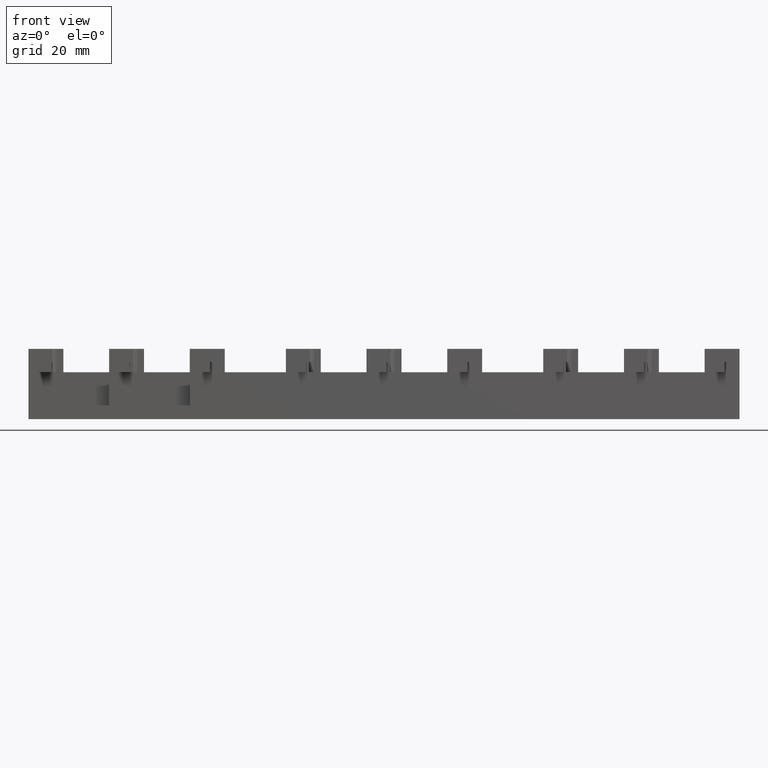
[diagram: clean part render]
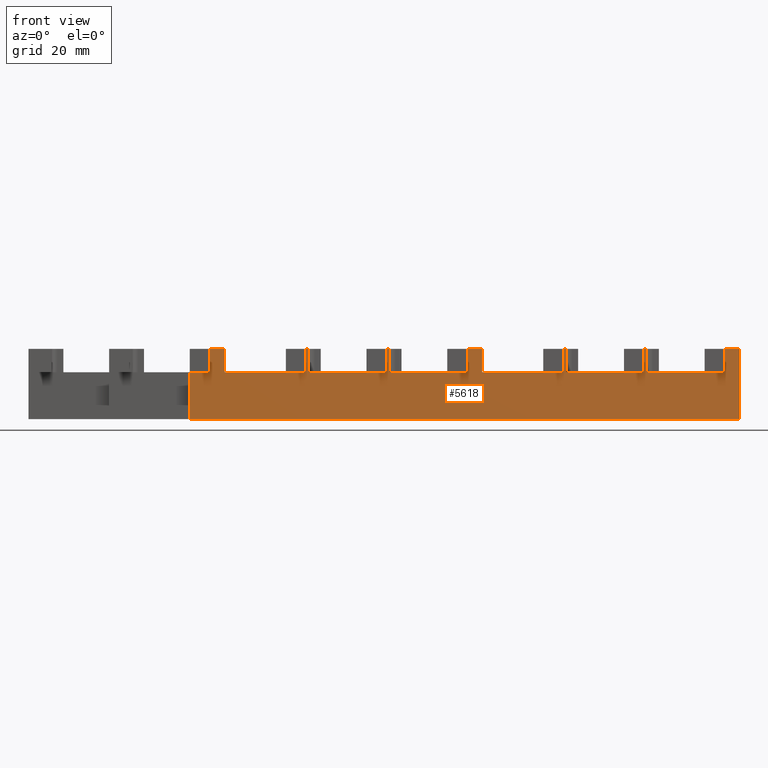
[diagram: same view with one face highlighted and labeled with its STEP entity id]
A machine part, front view. The second image highlights one B-rep face of the part: STEP entity #5618.
In plain terms, the highlighted planar face has unit normal (0, -1, 0).
Its self-contained STEP definition (entity closure, byte-faithful):
#3403=CARTESIAN_POINT('',(104.09999999999991,-7.999999999990921,103.99999999999089));
#3404=VERTEX_POINT('',#3403);
#3444=CARTESIAN_POINT('',(94.000000000000114,-7.999999999990878,103.99999999999103));
#3445=VERTEX_POINT('',#3444);
#3452=CARTESIAN_POINT('',(94.000000000000085,-7.999999999991048,103.99999999999103));
#3453=DIRECTION('',(1.0,0.0,0.0));
#3454=VECTOR('',#3453,10.099999999999795);
#3455=LINE('',#3452,#3454);
#3456=EDGE_CURVE('',#3445,#3404,#3455,.T.);
#3485=CARTESIAN_POINT('',(108.09999999999991,-7.999999999990921,103.99999999999083));
#3486=VERTEX_POINT('',#3485);
#3493=CARTESIAN_POINT('',(118.19999999999982,-7.999999999990735,103.99999999999071));
#3494=VERTEX_POINT('',#3493);
#3495=CARTESIAN_POINT('',(108.09999999999988,-7.999999999990866,103.99999999999085));
#3496=DIRECTION('',(1.0,0.0,0.0));
#3497=VECTOR('',#3496,10.099999999999909);
#3498=LINE('',#3495,#3497);
#3499=EDGE_CURVE('',#3486,#3494,#3498,.T.);
#3523=CARTESIAN_POINT('',(49.000000000000099,-7.999999999991461,103.99999999999162));
#3524=VERTEX_POINT('',#3523);
#3533=CARTESIAN_POINT('',(59.099999999999895,-7.99999999999149,103.9999999999915));
#3534=VERTEX_POINT('',#3533);
#3535=CARTESIAN_POINT('',(49.000000000000085,-7.999999999991626,103.99999999999163));
#3536=DIRECTION('',(1.0,0.0,0.0));
#3537=VECTOR('',#3536,10.099999999999795);
#3538=LINE('',#3535,#3537);
#3539=EDGE_CURVE('',#3524,#3534,#3538,.T.);
#3582=CARTESIAN_POINT('',(63.099999999999895,-7.999999999991504,103.99999999999145));
#3583=VERTEX_POINT('',#3582);
#3590=CARTESIAN_POINT('',(73.199999999999818,-7.999999999991319,103.99999999999132));
#3591=VERTEX_POINT('',#3590);
#3592=CARTESIAN_POINT('',(63.099999999999881,-7.999999999991445,103.99999999999145));
#3593=DIRECTION('',(1.0,0.0,0.0));
#3594=VECTOR('',#3593,10.099999999999909);
#3595=LINE('',#3592,#3594);
#3596=EDGE_CURVE('',#3583,#3591,#3595,.T.);
#3614=CARTESIAN_POINT('',(79.299999999999841,-7.99999999999912,103.99999999999123));
#3615=VERTEX_POINT('',#3614);
#3622=CARTESIAN_POINT('',(90.000000000000057,-7.999999999991091,103.99999999999109));
#3623=VERTEX_POINT('',#3622);
#3624=CARTESIAN_POINT('',(79.299999999999812,-7.999999999991236,103.99999999999123));
#3625=DIRECTION('',(1.0,0.0,0.0));
#3626=VECTOR('',#3625,10.700000000000216);
#3627=LINE('',#3624,#3626);
#3628=EDGE_CURVE('',#3615,#3623,#3627,.T.);
#3703=CARTESIAN_POINT('',(34.299999999999827,-7.999999999999703,103.99999999999181));
#3704=VERTEX_POINT('',#3703);
#3711=CARTESIAN_POINT('',(45.000000000000043,-7.999999999991674,103.99999999999167));
#3712=VERTEX_POINT('',#3711);
#3713=CARTESIAN_POINT('',(34.299999999999784,-7.999999999991815,103.99999999999181));
#3714=DIRECTION('',(1.0,0.0,0.0));
#3715=VECTOR('',#3714,10.700000000000244);
#3716=LINE('',#3713,#3715);
#3717=EDGE_CURVE('',#3704,#3712,#3716,.T.);
#3870=CARTESIAN_POINT('',(124.29999999999976,-7.999999999990651,95.799999999990632));
#3871=VERTEX_POINT('',#3870);
#3878=CARTESIAN_POINT('',(28.199999999999701,-7.999999999991887,95.799999999991897));
#3879=VERTEX_POINT('',#3878);
#3880=CARTESIAN_POINT('',(124.29999999999976,-7.999999999990664,95.799999999990632));
#3881=DIRECTION('',(-1.0,0.0,0.0));
#3882=VECTOR('',#3881,96.100000000000051);
#3883=LINE('',#3880,#3882);
#3884=EDGE_CURVE('',#3871,#3879,#3883,.T.);
#4228=CARTESIAN_POINT('',(34.299999999999883,-7.999999999999703,108.09999999999181));
#4229=VERTEX_POINT('',#4228);
#4236=CARTESIAN_POINT('',(34.299999999999827,-7.999999999999703,103.99999999999181));
#4237=DIRECTION('',(0.0,0.0,1.0));
#4238=VECTOR('',#4237,4.100000000000009);
#4239=LINE('',#4236,#4238);
#4240=EDGE_CURVE('',#3704,#4229,#4239,.T.);
#4252=CARTESIAN_POINT('',(31.699999999999978,-7.999999999999732,108.09999999999185));
#4253=VERTEX_POINT('',#4252);
#4270=CARTESIAN_POINT('',(31.699999999999918,-7.999999999999732,103.99999999999184));
#4271=VERTEX_POINT('',#4270);
#4278=CARTESIAN_POINT('',(31.699999999999918,-7.999999999999732,103.99999999999184));
#4279=DIRECTION('',(0.0,0.0,1.0));
#4280=VECTOR('',#4279,4.100000000000009);
#4281=LINE('',#4278,#4280);
#4282=EDGE_CURVE('',#4271,#4253,#4281,.T.);
#4337=CARTESIAN_POINT('',(28.199999999999807,-7.999999999991887,103.99999999999189));
#4338=VERTEX_POINT('',#4337);
#4339=CARTESIAN_POINT('',(28.199999999999807,-7.999999999991887,103.99999999999191));
#4340=DIRECTION('',(0.0,0.0,-1.0));
#4341=VECTOR('',#4340,8.200000000000003);
#4342=LINE('',#4339,#4341);
#4343=EDGE_CURVE('',#4338,#3879,#4342,.T.);
#4364=CARTESIAN_POINT('',(34.299999999999883,-7.999999999999703,108.09999999999181));
#4365=DIRECTION('',(-1.0,0.0,0.0));
#4366=VECTOR('',#4365,2.599999999999909);
#4367=LINE('',#4364,#4366);
#4368=EDGE_CURVE('',#4229,#4253,#4367,.T.);
#4379=CARTESIAN_POINT('',(28.199999999999811,-7.999999999991886,103.9999999999919));
#4380=DIRECTION('',(1.0,0.0,0.0));
#4381=VECTOR('',#4380,3.500000000000114);
#4382=LINE('',#4379,#4381);
#4383=EDGE_CURVE('',#4338,#4271,#4382,.T.);
#4428=CARTESIAN_POINT('',(63.099999999999959,-7.999999999991504,108.09999999999143));
#4429=VERTEX_POINT('',#4428);
#4436=CARTESIAN_POINT('',(63.099999999999895,-7.999999999991504,103.99999999999145));
#4437=DIRECTION('',(0.0,0.0,1.0));
#4438=VECTOR('',#4437,4.099999999999994);
#4439=LINE('',#4436,#4438);
#4440=EDGE_CURVE('',#3583,#4429,#4439,.T.);
#4452=CARTESIAN_POINT('',(62.600000000000186,-7.999999999991504,108.09999999999144));
#4453=VERTEX_POINT('',#4452);
#4470=CARTESIAN_POINT('',(62.600000000000129,-7.999999999991504,103.99999999999146));
#4471=VERTEX_POINT('',#4470);
#4478=CARTESIAN_POINT('',(62.600000000000129,-7.999999999991504,103.99999999999146));
#4479=DIRECTION('',(0.0,0.0,1.0));
#4480=VECTOR('',#4479,4.099999999999994);
#4481=LINE('',#4478,#4480);
#4482=EDGE_CURVE('',#4471,#4453,#4481,.T.);
#4625=CARTESIAN_POINT('',(63.099999999999959,-7.999999999991498,108.09999999999144));
#4626=DIRECTION('',(-1.0,0.0,0.0));
#4627=VECTOR('',#4626,0.499999999999773);
#4628=LINE('',#4625,#4627);
#4629=EDGE_CURVE('',#4429,#4453,#4628,.T.);
#4640=CARTESIAN_POINT('',(59.099999999999909,-7.9999999999915,103.9999999999915));
#4641=DIRECTION('',(1.0,0.0,0.0));
#4642=VECTOR('',#4641,3.500000000000227);
#4643=LINE('',#4640,#4642);
#4644=EDGE_CURVE('',#3534,#4471,#4643,.T.);
#4657=CARTESIAN_POINT('',(93.500000000000171,-7.999999999991106,108.09999999999104));
#4658=VERTEX_POINT('',#4657);
#4675=CARTESIAN_POINT('',(93.500000000000114,-7.999999999991106,103.99999999999103));
#4676=VERTEX_POINT('',#4675);
#4683=CARTESIAN_POINT('',(93.500000000000114,-7.999999999991106,103.99999999999103));
#4684=DIRECTION('',(0.0,0.0,1.0));
#4685=VECTOR('',#4684,4.099999999999994);
#4686=LINE('',#4683,#4685);
#4687=EDGE_CURVE('',#4676,#4658,#4686,.T.);
#4845=CARTESIAN_POINT('',(94.000000000000185,-7.999999999990878,108.09999999999104));
#4846=VERTEX_POINT('',#4845);
#4853=CARTESIAN_POINT('',(94.000000000000114,-7.999999999990878,103.99999999999103));
#4854=DIRECTION('',(0.0,0.0,1.0));
#4855=VECTOR('',#4854,4.099999999999994);
#4856=LINE('',#4853,#4855);
#4857=EDGE_CURVE('',#3445,#4846,#4856,.T.);
#4869=CARTESIAN_POINT('',(94.000000000000171,-7.999999999990872,108.09999999999104));
#4870=DIRECTION('',(-1.0,-4.671818E-013,0.0));
#4871=VECTOR('',#4870,0.5);
#4872=LINE('',#4869,#4871);
#4873=EDGE_CURVE('',#4846,#4658,#4872,.T.);
#4896=CARTESIAN_POINT('',(90.000000000000071,-7.999999999991102,103.99999999999109));
#4897=DIRECTION('',(1.0,0.0,0.0));
#4898=VECTOR('',#4897,3.500000000000057);
#4899=LINE('',#4896,#4898);
#4900=EDGE_CURVE('',#3623,#4676,#4899,.T.);
#4951=CARTESIAN_POINT('',(124.29999999999991,-7.999999999998538,108.09999999999064));
#4952=VERTEX_POINT('',#4951);
#4959=CARTESIAN_POINT('',(124.29999999999991,-7.999999999990651,108.09999999999064));
#4960=DIRECTION('',(0.0,0.0,-1.0));
#4961=VECTOR('',#4960,12.300000000000011);
#4962=LINE('',#4959,#4961);
#4963=EDGE_CURVE('',#4952,#3871,#4962,.T.);
#4975=CARTESIAN_POINT('',(121.7,-7.999999999998581,108.09999999999066));
#4976=VERTEX_POINT('',#4975);
#4993=CARTESIAN_POINT('',(121.69999999999995,-7.999999999998581,103.99999999999068));
#4994=VERTEX_POINT('',#4993);
#5001=CARTESIAN_POINT('',(121.69999999999995,-7.999999999998581,103.99999999999068));
#5002=DIRECTION('',(0.0,0.0,1.0));
#5003=VECTOR('',#5002,4.100000000000009);
#5004=LINE('',#5001,#5003);
#5005=EDGE_CURVE('',#4994,#4976,#5004,.T.);
#5073=CARTESIAN_POINT('',(124.29999999999991,-7.999999999998538,108.09999999999064));
#5074=DIRECTION('',(-1.0,0.0,0.0));
#5075=VECTOR('',#5074,2.599999999999909);
#5076=LINE('',#5073,#5075);
#5077=EDGE_CURVE('',#4952,#4976,#5076,.T.);
#5088=CARTESIAN_POINT('',(118.19999999999983,-7.999999999990738,103.99999999999071));
#5089=DIRECTION('',(1.0,0.0,0.0));
#5090=VECTOR('',#5089,3.500000000000114);
#5091=LINE('',#5088,#5090);
#5092=EDGE_CURVE('',#3494,#4994,#5091,.T.);
#5137=CARTESIAN_POINT('',(108.09999999999997,-7.999999999990921,108.09999999999084));
#5138=VERTEX_POINT('',#5137);
#5145=CARTESIAN_POINT('',(108.09999999999991,-7.999999999990921,103.99999999999083));
#5146=DIRECTION('',(0.0,0.0,1.0));
#5147=VECTOR('',#5146,4.099999999999994);
#5148=LINE('',#5145,#5147);
#5149=EDGE_CURVE('',#3486,#5138,#5148,.T.);
#5161=CARTESIAN_POINT('',(107.60000000000019,-7.999999999990921,108.09999999999086));
#5162=VERTEX_POINT('',#5161);
#5179=CARTESIAN_POINT('',(107.60000000000014,-7.999999999990921,103.99999999999085));
#5180=VERTEX_POINT('',#5179);
#5187=CARTESIAN_POINT('',(107.60000000000014,-7.999999999990921,103.99999999999085));
#5188=DIRECTION('',(0.0,0.0,1.0));
#5189=VECTOR('',#5188,4.099999999999994);
#5190=LINE('',#5187,#5189);
#5191=EDGE_CURVE('',#5180,#5162,#5190,.T.);
#5337=CARTESIAN_POINT('',(108.09999999999997,-7.999999999990915,108.09999999999086));
#5338=DIRECTION('',(-1.0,0.0,0.0));
#5339=VECTOR('',#5338,0.499999999999773);
#5340=LINE('',#5337,#5339);
#5341=EDGE_CURVE('',#5138,#5162,#5340,.T.);
#5352=CARTESIAN_POINT('',(104.09999999999992,-7.999999999990913,103.99999999999091));
#5353=DIRECTION('',(1.0,0.0,0.0));
#5354=VECTOR('',#5353,3.500000000000227);
#5355=LINE('',#5352,#5354);
#5356=EDGE_CURVE('',#3404,#5180,#5355,.T.);
#5400=CARTESIAN_POINT('',(79.299999999999898,-7.99999999999912,108.09999999999123));
#5401=VERTEX_POINT('',#5400);
#5408=CARTESIAN_POINT('',(79.299999999999841,-7.99999999999912,103.99999999999123));
#5409=DIRECTION('',(0.0,0.0,1.0));
#5410=VECTOR('',#5409,4.100000000000009);
#5411=LINE('',#5408,#5410);
#5412=EDGE_CURVE('',#3615,#5401,#5411,.T.);
#5424=CARTESIAN_POINT('',(76.699999999999989,-7.999999999999149,108.09999999999127));
#5425=VERTEX_POINT('',#5424);
#5442=CARTESIAN_POINT('',(76.699999999999932,-7.999999999999149,103.99999999999126));
#5443=VERTEX_POINT('',#5442);
#5450=CARTESIAN_POINT('',(76.699999999999932,-7.999999999999149,103.99999999999126));
#5451=DIRECTION('',(0.0,0.0,1.0));
#5452=VECTOR('',#5451,4.100000000000009);
#5453=LINE('',#5450,#5452);
#5454=EDGE_CURVE('',#5443,#5425,#5453,.T.);
#5522=CARTESIAN_POINT('',(79.299999999999898,-7.99999999999912,108.09999999999123));
#5523=DIRECTION('',(-1.0,0.0,0.0));
#5524=VECTOR('',#5523,2.599999999999909);
#5525=LINE('',#5522,#5524);
#5526=EDGE_CURVE('',#5401,#5425,#5525,.T.);
#5537=CARTESIAN_POINT('',(73.199999999999818,-7.999999999991312,103.9999999999913));
#5538=DIRECTION('',(1.0,0.0,0.0));
#5539=VECTOR('',#5538,3.500000000000114);
#5540=LINE('',#5537,#5539);
#5541=EDGE_CURVE('',#3591,#5443,#5540,.T.);
#5549=CARTESIAN_POINT('',(49.000000000000099,-7.999999999991461,103.99999999999162));
#5550=DIRECTION('',(4.676125E-013,-1.0,3.835365E-017));
#5551=DIRECTION('',(0.0,0.0,-1.0));
#5552=AXIS2_PLACEMENT_3D('',#5549,#5550,#5551);
#5553=PLANE('',#5552);
#5554=CARTESIAN_POINT('',(49.000000000000156,-7.999999999991446,108.09999999999162));
#5555=VERTEX_POINT('',#5554);
#5556=CARTESIAN_POINT('',(48.500000000000156,-7.999999999991688,108.09999999999164));
#5557=VERTEX_POINT('',#5556);
#5558=CARTESIAN_POINT('',(49.000000000000156,-7.999999999991455,108.09999999999164));
#5559=DIRECTION('',(-1.0,-4.671818E-013,0.0));
#5560=VECTOR('',#5559,0.5);
#5561=LINE('',#5558,#5560);
#5562=EDGE_CURVE('',#5555,#5557,#5561,.T.);
#5563=ORIENTED_EDGE('',*,*,#5562,.T.);
#5564=CARTESIAN_POINT('',(48.500000000000099,-7.999999999991688,103.99999999999164));
#5565=VERTEX_POINT('',#5564);
#5566=CARTESIAN_POINT('',(48.500000000000099,-7.999999999991688,103.99999999999164));
#5567=DIRECTION('',(0.0,0.0,1.0));
#5568=VECTOR('',#5567,4.099999999999994);
#5569=LINE('',#5566,#5568);
#5570=EDGE_CURVE('',#5565,#5557,#5569,.T.);
#5571=ORIENTED_EDGE('',*,*,#5570,.F.);
#5572=CARTESIAN_POINT('',(45.00000000000005,-7.999999999991676,103.99999999999169));
#5573=DIRECTION('',(1.0,0.0,0.0));
#5574=VECTOR('',#5573,3.500000000000057);
#5575=LINE('',#5572,#5574);
#5576=EDGE_CURVE('',#3712,#5565,#5575,.T.);
#5577=ORIENTED_EDGE('',*,*,#5576,.F.);
#5578=ORIENTED_EDGE('',*,*,#3717,.F.);
#5579=ORIENTED_EDGE('',*,*,#4240,.T.);
#5580=ORIENTED_EDGE('',*,*,#4368,.T.);
#5581=ORIENTED_EDGE('',*,*,#4282,.F.);
#5582=ORIENTED_EDGE('',*,*,#4383,.F.);
#5583=ORIENTED_EDGE('',*,*,#4343,.T.);
#5584=ORIENTED_EDGE('',*,*,#3884,.F.);
#5585=ORIENTED_EDGE('',*,*,#4963,.F.);
#5586=ORIENTED_EDGE('',*,*,#5077,.T.);
#5587=ORIENTED_EDGE('',*,*,#5005,.F.);
#5588=ORIENTED_EDGE('',*,*,#5092,.F.);
#5589=ORIENTED_EDGE('',*,*,#3499,.F.);
#5590=ORIENTED_EDGE('',*,*,#5149,.T.);
#5591=ORIENTED_EDGE('',*,*,#5341,.T.);
#5592=ORIENTED_EDGE('',*,*,#5191,.F.);
#5593=ORIENTED_EDGE('',*,*,#5356,.F.);
#5594=ORIENTED_EDGE('',*,*,#3456,.F.);
#5595=ORIENTED_EDGE('',*,*,#4857,.T.);
#5596=ORIENTED_EDGE('',*,*,#4873,.T.);
#5597=ORIENTED_EDGE('',*,*,#4687,.F.);
#5598=ORIENTED_EDGE('',*,*,#4900,.F.);
#5599=ORIENTED_EDGE('',*,*,#3628,.F.);
#5600=ORIENTED_EDGE('',*,*,#5412,.T.);
#5601=ORIENTED_EDGE('',*,*,#5526,.T.);
#5602=ORIENTED_EDGE('',*,*,#5454,.F.);
#5603=ORIENTED_EDGE('',*,*,#5541,.F.);
#5604=ORIENTED_EDGE('',*,*,#3596,.F.);
#5605=ORIENTED_EDGE('',*,*,#4440,.T.);
#5606=ORIENTED_EDGE('',*,*,#4629,.T.);
#5607=ORIENTED_EDGE('',*,*,#4482,.F.);
#5608=ORIENTED_EDGE('',*,*,#4644,.F.);
#5609=ORIENTED_EDGE('',*,*,#3539,.F.);
#5610=CARTESIAN_POINT('',(49.000000000000099,-7.999999999991461,103.99999999999162));
#5611=DIRECTION('',(0.0,0.0,1.0));
#5612=VECTOR('',#5611,4.099999999999994);
#5613=LINE('',#5610,#5612);
#5614=EDGE_CURVE('',#3524,#5555,#5613,.T.);
#5615=ORIENTED_EDGE('',*,*,#5614,.T.);
#5616=EDGE_LOOP('',(#5563,#5571,#5577,#5578,#5579,#5580,#5581,#5582,#5583,#5584,#5585,#5586,#5587,#5588,#5589,#5590,#5591,#5592,#5593,#5594,#5595,#5596,#5597,#5598,#5599,#5600,#5601,#5602,#5603,#5604,#5605,#5606,#5607,#5608,#5609,#5615));
#5617=FACE_OUTER_BOUND('',#5616,.T.);
#5618=ADVANCED_FACE('',(#5617),#5553,.T.);